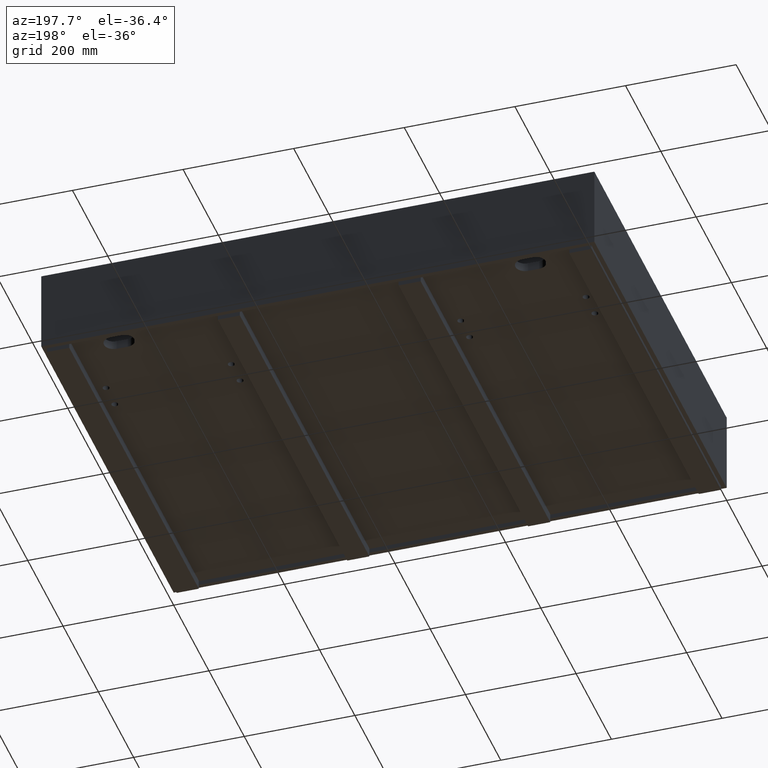
[diagram: clean part render]
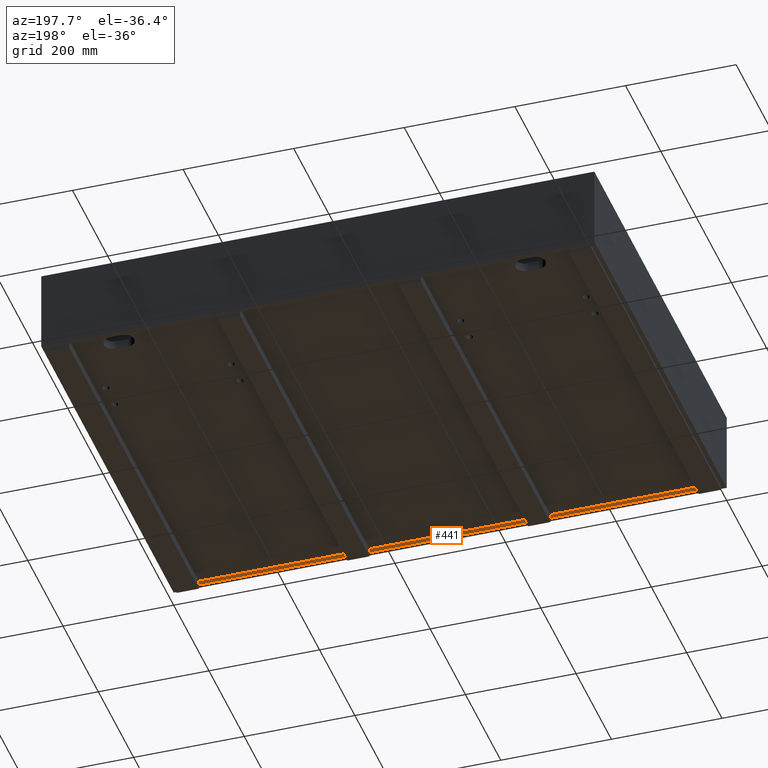
[diagram: same view with one face highlighted and labeled with its STEP entity id]
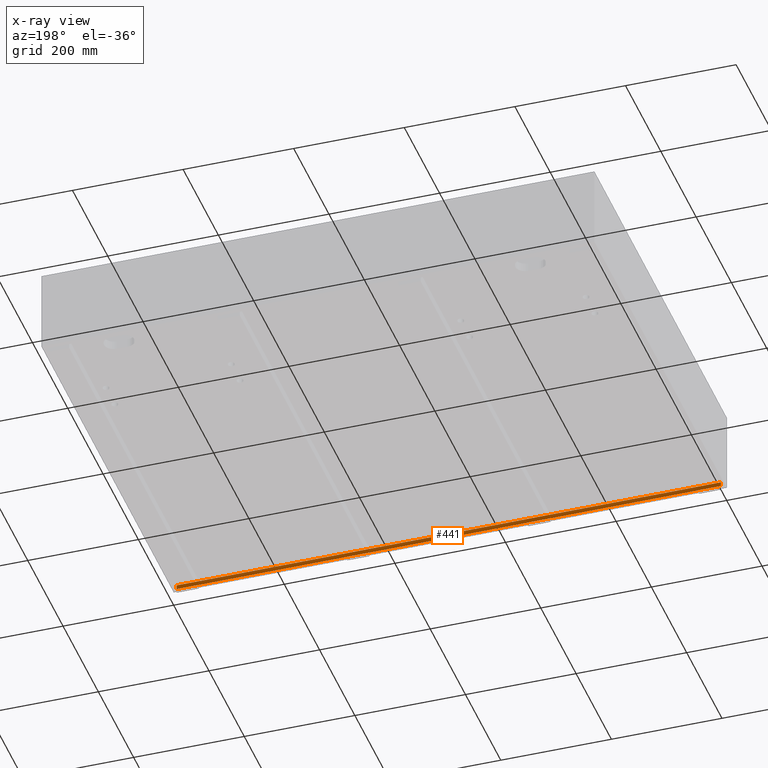
[diagram: x-ray of the same camera — body ghosted, the highlighted face saturated]
A machine part, auxiliary view. The second image highlights one B-rep face of the part: STEP entity #441.
The next image is the same camera in x-ray: the body ghosted, the highlighted face saturated — about 0% of this face is hidden behind the body in this view.
In plain terms, the highlighted planar face has unit normal (0, 1, 0).
Its self-contained STEP definition (entity closure, byte-faithful):
#441 = ADVANCED_FACE ( 'NONE', ( #11507 ), #16961, .T. ) ;
#942 = LINE ( 'NONE', #6415, #7517 ) ;
#1343 = ORIENTED_EDGE ( 'NONE', *, *, #6666, .T. ) ;
#1817 = VECTOR ( 'NONE', #17246, 1000.000000000000000 ) ;
#2363 = ORIENTED_EDGE ( 'NONE', *, *, #16342, .F. ) ;
#3401 = VECTOR ( 'NONE', #17415, 1000.000000000000000 ) ;
#3510 = EDGE_CURVE ( 'NONE', #3532, #17235, #942, .T. ) ;
#3532 = VERTEX_POINT ( 'NONE', #10525 ) ;
#4000 = AXIS2_PLACEMENT_3D ( 'NONE', #4716, #10166, #15621 ) ;
#4001 = ORIENTED_EDGE ( 'NONE', *, *, #3510, .T. ) ;
#4716 = CARTESIAN_POINT ( 'NONE',  ( 0.0000000000000000000, 8.000000000000000000, 0.0000000000000000000 ) ) ;
#5059 = VERTEX_POINT ( 'NONE', #12832 ) ;
#5086 = CARTESIAN_POINT ( 'NONE',  ( 0.0000000000000000000, 8.000000000000000000, -150.0000000000000000 ) ) ;
#6340 = LINE ( 'NONE', #11793, #1817 ) ;
#6415 = CARTESIAN_POINT ( 'NONE',  ( 7.999999999999896083, 8.000000000000000000, 0.0000000000000000000 ) ) ;
#6520 = LINE ( 'NONE', #11967, #3401 ) ;
#6666 = EDGE_CURVE ( 'NONE', #5059, #3532, #17327, .T. ) ;
#7517 = VECTOR ( 'NONE', #11861, 1000.000000000000000 ) ;
#7849 = EDGE_LOOP ( 'NONE', ( #2363, #11100, #1343, #4001 ) ) ;
#10166 = DIRECTION ( 'NONE',  ( 0.0000000000000000000, 1.000000000000000000, 0.0000000000000000000 ) ) ;
#10260 = EDGE_CURVE ( 'NONE', #10546, #5059, #6340, .T. ) ;
#10525 = CARTESIAN_POINT ( 'NONE',  ( 7.999999999999896083, 8.000000000000000000, -150.0000000000000000 ) ) ;
#10541 = DIRECTION ( 'NONE',  ( -1.000000000000000000, -0.0000000000000000000, -0.0000000000000000000 ) ) ;
#10546 = VERTEX_POINT ( 'NONE', #14022 ) ;
#11100 = ORIENTED_EDGE ( 'NONE', *, *, #10260, .T. ) ;
#11507 = FACE_OUTER_BOUND ( 'NONE', #7849, .T. ) ;
#11793 = CARTESIAN_POINT ( 'NONE',  ( 991.9999999999998863, 8.000000000000000000, 0.0000000000000000000 ) ) ;
#11861 = DIRECTION ( 'NONE',  ( 0.0000000000000000000, -0.0000000000000000000, 1.000000000000000000 ) ) ;
#11967 = CARTESIAN_POINT ( 'NONE',  ( 0.0000000000000000000, 8.000000000000000000, -142.0000000000000000 ) ) ;
#12832 = CARTESIAN_POINT ( 'NONE',  ( 991.9999999999998863, 8.000000000000000000, -150.0000000000000000 ) ) ;
#13704 = CARTESIAN_POINT ( 'NONE',  ( 7.999999999999896083, 8.000000000000000000, -142.0000000000000000 ) ) ;
#14022 = CARTESIAN_POINT ( 'NONE',  ( 991.9999999999998863, 8.000000000000000000, -142.0000000000000853 ) ) ;
#15621 = DIRECTION ( 'NONE',  ( 0.0000000000000000000, -0.0000000000000000000, 1.000000000000000000 ) ) ;
#16342 = EDGE_CURVE ( 'NONE', #10546, #17235, #6520, .T. ) ;
#16961 = PLANE ( 'NONE',  #4000 ) ;
#17235 = VERTEX_POINT ( 'NONE', #13704 ) ;
#17246 = DIRECTION ( 'NONE',  ( 0.0000000000000000000, 0.0000000000000000000, -1.000000000000000000 ) ) ;
#17327 = LINE ( 'NONE', #5086, #17437 ) ;
#17415 = DIRECTION ( 'NONE',  ( -1.000000000000000000, -0.0000000000000000000, 1.110223024625156540E-16 ) ) ;
#17437 = VECTOR ( 'NONE', #10541, 1000.000000000000000 ) ;